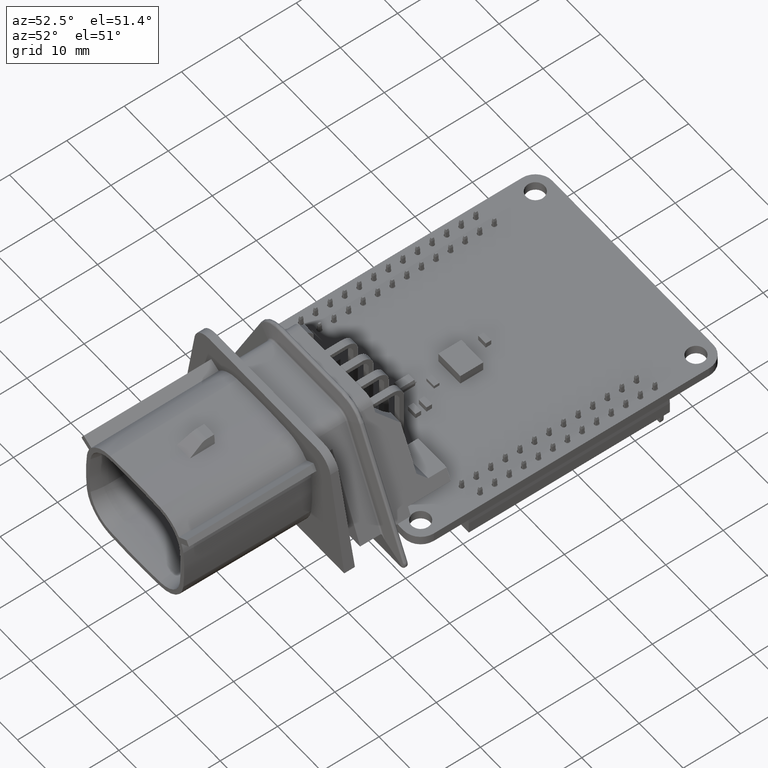
[diagram: clean part render]
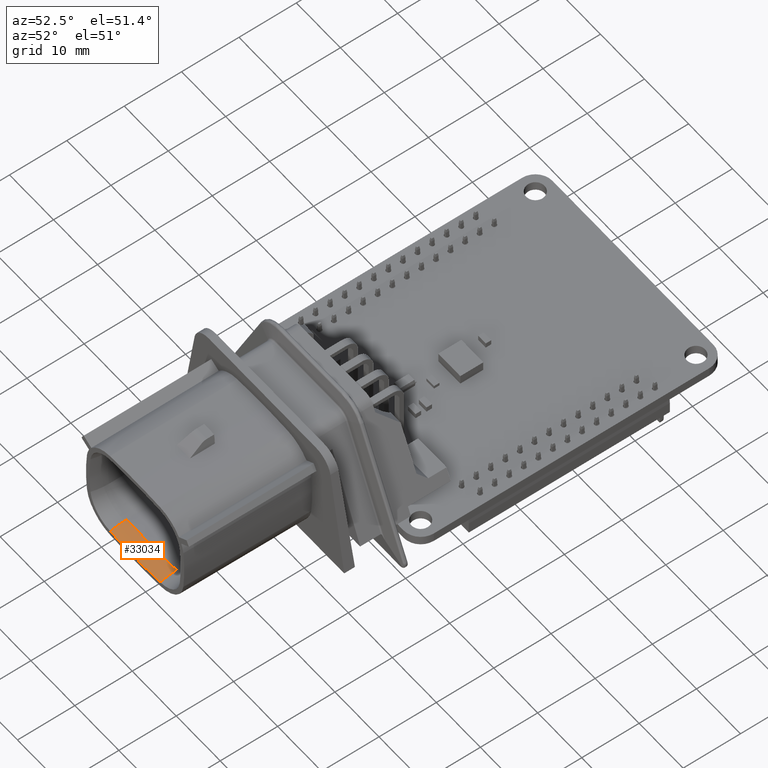
[diagram: same view with one face highlighted and labeled with its STEP entity id]
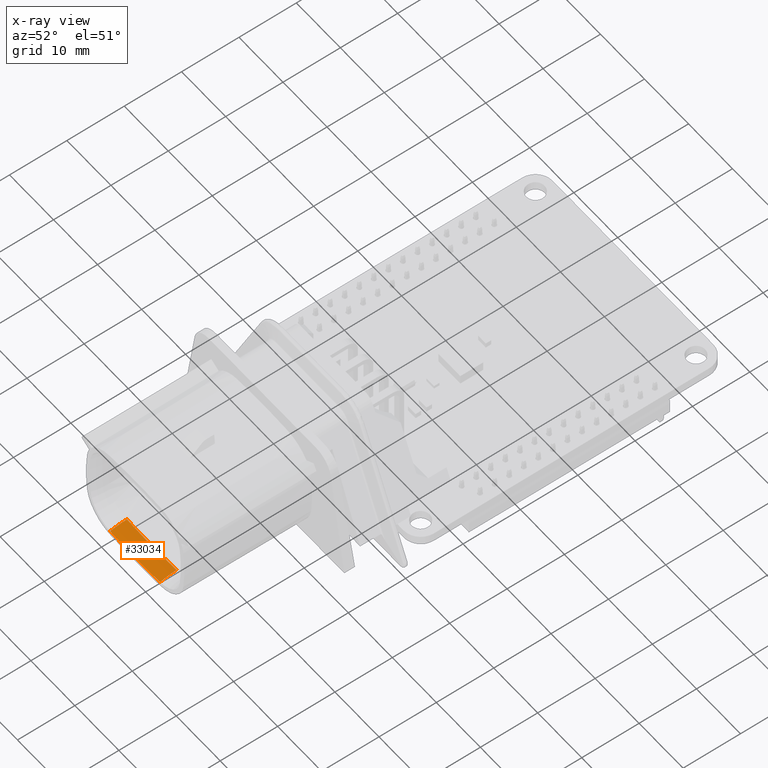
[diagram: x-ray of the same camera — body ghosted, the highlighted face saturated]
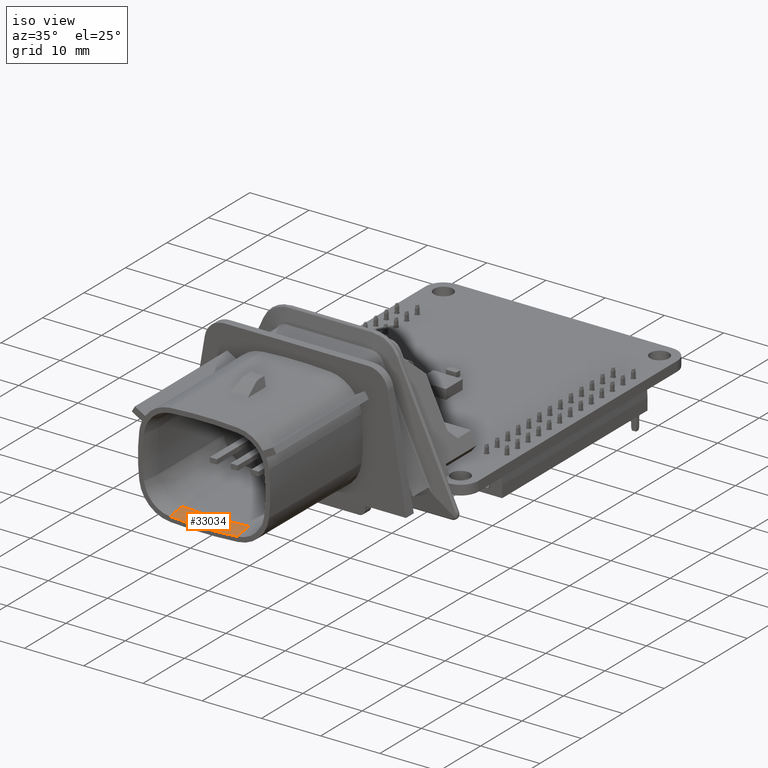
[diagram: same view with one face highlighted and labeled with its STEP entity id]
A machine part, auxiliary view. The second image highlights one B-rep face of the part: STEP entity #33034.
The next image is the same camera in x-ray: the body ghosted, the highlighted face saturated — about 0% of this face is hidden behind the body in this view.
A second angle (iso view) of the same face is appended — the face is thin or edge-on in the first view.
In plain terms, the highlighted toroidal blend (fillet) surface has major radius 86.3684 mm and minor (blend) radius 9.8464 mm.
Its self-contained STEP definition (entity closure, byte-faithful):
#8755 = PLANE('',#8756);
#8756 = AXIS2_PLACEMENT_3D('',#8757,#8758,#8759);
#8757 = CARTESIAN_POINT('',(5.806851072447,19.79645137002,33.88499901064
    ));
#8758 = DIRECTION('',(0.E+000,0.E+000,1.));
#8759 = DIRECTION('',(1.,-0.E+000,0.E+000));
#12275 = TOROIDAL_SURFACE('',#12276,14.2645842,9.8464104);
#12276 = AXIS2_PLACEMENT_3D('',#12277,#12278,#12279);
#12277 = CARTESIAN_POINT('',(12.79530848084,8.450828863081,
    30.94184092955));
#12278 = DIRECTION('',(0.E+000,0.E+000,-1.));
#12279 = DIRECTION('',(0.993093812473,-0.117322971442,0.E+000));
#13053 = VERTEX_POINT('',#13054);
#13054 = CARTESIAN_POINT('',(13.15437170544,3.595759587835,
    33.88499901064));
#13102 = EDGE_CURVE('',#13053,#13103,#13105,.T.);
#13103 = VERTEX_POINT('',#13104);
#13104 = CARTESIAN_POINT('',(1.800227767993,3.595759587835,
    33.88499901064));
#13105 = SURFACE_CURVE('',#13106,(#13111,#13122),.PCURVE_S1.);
#13106 = CIRCLE('',#13107,76.972105);
#13107 = AXIS2_PLACEMENT_3D('',#13108,#13109,#13110);
#13108 = CARTESIAN_POINT('',(7.477299736727,80.35822313374,
    33.88499901065));
#13109 = DIRECTION('',(0.E+000,-0.E+000,-1.));
#13110 = DIRECTION('',(7.375492673705E-002,-0.997276396383,0.E+000));
#13111 = PCURVE('',#8755,#13112);
#13112 = DEFINITIONAL_REPRESENTATION('',(#13113),#13121);
#13113 = ( BOUNDED_CURVE() B_SPLINE_CURVE(2,(#13114,#13115,#13116,#13117
    ,#13118,#13119,#13120),.UNSPECIFIED.,.F.,.F.) 
B_SPLINE_CURVE_WITH_KNOTS((1,2,2,2,2,1),(-2.094395102393,0.E+000,
    2.094395102393,4.188790204786,6.28318530718,8.377580409573),
.UNSPECIFIED.) CURVE() GEOMETRIC_REPRESENTATION_ITEM() 
RATIONAL_B_SPLINE_CURVE((1.,0.5,1.,0.5,1.,0.5,1.)) REPRESENTATION_ITEM(
  '') );
#13114 = CARTESIAN_POINT('',(7.347520629351,-16.20069173266));
#13115 = CARTESIAN_POINT('',(-125.6089662605,-26.03366881439));
#13116 = CARTESIAN_POINT('',(-67.6463307632,94.02651497105));
#13117 = CARTESIAN_POINT('',(-9.683695265863,214.08669875649));
#13118 = CARTESIAN_POINT('',(65.310156126693,103.85949205277));
#13119 = CARTESIAN_POINT('',(140.30400751924,-6.36771465094));
#13120 = CARTESIAN_POINT('',(7.347520629351,-16.20069173266));
#13121 = ( GEOMETRIC_REPRESENTATION_CONTEXT(2) 
PARAMETRIC_REPRESENTATION_CONTEXT() REPRESENTATION_CONTEXT('2D SPACE',''
  ) );
#13122 = PCURVE('',#13123,#13128);
#13123 = TOROIDAL_SURFACE('',#13124,86.3683606,9.8464104);
#13124 = AXIS2_PLACEMENT_3D('',#13125,#13126,#13127);
#13125 = CARTESIAN_POINT('',(7.477299736717,80.35822313373,
    30.94184092955));
#13126 = DIRECTION('',(0.E+000,0.E+000,-1.));
#13127 = DIRECTION('',(0.E+000,-1.,0.E+000));
#13128 = DEFINITIONAL_REPRESENTATION('',(#13129),#13155);
#13129 = B_SPLINE_CURVE_WITH_KNOTS('',3,(#13130,#13131,#13132,#13133,
    #13134,#13135,#13136,#13137,#13138,#13139,#13140,#13141,#13142,
    #13143,#13144,#13145,#13146,#13147,#13148,#13149,#13150,#13151,
    #13152,#13153,#13154),.UNSPECIFIED.,.F.,.F.,(4,1,1,1,1,1,1,1,1,1,1,1
    ,1,1,1,1,1,1,1,1,1,1,4),(0.E+000,6.711087227221E-003,
    1.342217445444E-002,2.013326168166E-002,2.684434890888E-002,
    3.35554361361E-002,4.026652336332E-002,4.697761059054E-002,
    5.368869781777E-002,6.039978504499E-002,6.711087227221E-002,
    7.382195949943E-002,8.053304672665E-002,8.724413395387E-002,
    9.395522118109E-002,0.100666308408,0.107377395636,0.114088482863,
    0.12079957009,0.127510657317,0.134221744544,0.140932831772,
    0.147643918999),.QUASI_UNIFORM_KNOTS.);
#13130 = CARTESIAN_POINT('',(6.20936334768,3.445139426779));
#13131 = CARTESIAN_POINT('',(6.211600376756,3.445139426779));
#13132 = CARTESIAN_POINT('',(6.216074434907,3.445139426779));
#13133 = CARTESIAN_POINT('',(6.222785522134,3.445139426779));
#13134 = CARTESIAN_POINT('',(6.229496609362,3.445139426779));
#13135 = CARTESIAN_POINT('',(6.236207696589,3.445139426779));
#13136 = CARTESIAN_POINT('',(6.242918783816,3.445139426779));
#13137 = CARTESIAN_POINT('',(6.249629871043,3.445139426779));
#13138 = CARTESIAN_POINT('',(6.256340958271,3.445139426779));
#13139 = CARTESIAN_POINT('',(6.263052045498,3.445139426779));
#13140 = CARTESIAN_POINT('',(6.269763132725,3.445139426779));
#13141 = CARTESIAN_POINT('',(6.276474219952,3.445139426779));
#13142 = CARTESIAN_POINT('',(6.283185307179,3.445139426779));
#13143 = CARTESIAN_POINT('',(6.289896394407,3.445139426779));
#13144 = CARTESIAN_POINT('',(6.296607481634,3.445139426779));
#13145 = CARTESIAN_POINT('',(6.303318568861,3.445139426779));
#13146 = CARTESIAN_POINT('',(6.310029656088,3.445139426779));
#13147 = CARTESIAN_POINT('',(6.316740743316,3.445139426779));
#13148 = CARTESIAN_POINT('',(6.323451830543,3.445139426779));
#13149 = CARTESIAN_POINT('',(6.33016291777,3.445139426779));
#13150 = CARTESIAN_POINT('',(6.336874004997,3.445139426779));
#13151 = CARTESIAN_POINT('',(6.343585092224,3.445139426779));
#13152 = CARTESIAN_POINT('',(6.350296179452,3.445139426779));
#13153 = CARTESIAN_POINT('',(6.354770237603,3.445139426779));
#13154 = CARTESIAN_POINT('',(6.357007266679,3.445139426779));
#13155 = ( GEOMETRIC_REPRESENTATION_CONTEXT(2) 
PARAMETRIC_REPRESENTATION_CONTEXT() REPRESENTATION_CONTEXT('2D SPACE',''
  ) );
#13178 = TOROIDAL_SURFACE('',#13179,14.2645842,9.8464104);
#13179 = AXIS2_PLACEMENT_3D('',#13180,#13181,#13182);
#13180 = CARTESIAN_POINT('',(2.159290992589,8.450828863081,
    30.94184092955));
#13181 = DIRECTION('',(-0.E+000,0.E+000,-1.));
#13182 = DIRECTION('',(-7.375492673691E-002,-0.997276396383,0.E+000));
#21496 = CONICAL_SURFACE('',#21497,76.4879011,4.3633231E-003);
#21497 = AXIS2_PLACEMENT_3D('',#21498,#21499,#21500);
#21498 = CARTESIAN_POINT('',(7.477299736717,80.35822313373,
    23.15990193177));
#21499 = DIRECTION('',(0.E+000,0.E+000,1.));
#21500 = DIRECTION('',(-1.,0.E+000,0.E+000));
#27799 = EDGE_CURVE('',#27800,#13103,#27802,.T.);
#27800 = VERTEX_POINT('',#27801);
#27801 = CARTESIAN_POINT('',(1.833421993151,4.044594922789,
    30.98480386354));
#27802 = SURFACE_CURVE('',#27803,(#27808,#27837),.PCURVE_S1.);
#27803 = CIRCLE('',#27804,9.8464104);
#27804 = AXIS2_PLACEMENT_3D('',#27805,#27806,#27807);
#27805 = CARTESIAN_POINT('',(1.107207627377,-5.774904299203,
    30.94184092956));
#27806 = DIRECTION('',(0.997276396383,-7.375492673787E-002,
    9.338555153697E-013));
#27807 = DIRECTION('',(7.375422464412E-002,0.99726690303,
    4.363309285682E-003));
#27808 = PCURVE('',#13178,#27809);
#27809 = DEFINITIONAL_REPRESENTATION('',(#27810),#27836);
#27810 = B_SPLINE_CURVE_WITH_KNOTS('',3,(#27811,#27812,#27813,#27814,
    #27815,#27816,#27817,#27818,#27819,#27820,#27821,#27822,#27823,
    #27824,#27825,#27826,#27827,#27828,#27829,#27830,#27831,#27832,
    #27833,#27834,#27835),.UNSPECIFIED.,.F.,.F.,(4,1,1,1,1,1,1,1,1,1,1,1
    ,1,1,1,1,1,1,1,1,1,1,4),(0.E+000,1.359924778135E-002,
    2.71984955627E-002,4.079774334405E-002,5.43969911254E-002,
    6.799623890674E-002,8.159548668809E-002,9.519473446944E-002,
    0.108793982251,0.122393230032,0.135992477813,0.149591725595,
    0.163190973376,0.176790221158,0.190389468939,0.20398871672,
    0.217587964502,0.231187212283,0.244786460064,0.258385707846,
    0.271984955627,0.285584203408,0.29918345119),.QUASI_UNIFORM_KNOTS.);
#27811 = CARTESIAN_POINT('',(0.E+000,3.145955976737));
#27812 = CARTESIAN_POINT('',(-2.720490499541E-012,3.150489059348));
#27813 = CARTESIAN_POINT('',(-5.24380538991E-012,3.159555224568));
#27814 = CARTESIAN_POINT('',(-4.189537605725E-012,3.173154472398));
#27815 = CARTESIAN_POINT('',(-4.431122135884E-012,3.186753720229));
#27816 = CARTESIAN_POINT('',(-4.320099833421E-012,3.200352968059));
#27817 = CARTESIAN_POINT('',(-4.301448086608E-012,3.213952215889));
#27818 = CARTESIAN_POINT('',(-4.255262808783E-012,3.227551463719));
#27819 = CARTESIAN_POINT('',(-4.213518423057E-012,3.24115071155));
#27820 = CARTESIAN_POINT('',(-4.169997680492E-012,3.25474995938));
#27821 = CARTESIAN_POINT('',(-4.124700581087E-012,3.26834920721));
#27822 = CARTESIAN_POINT('',(-4.074962589584E-012,3.28194845504));
#27823 = CARTESIAN_POINT('',(-4.02788913334E-012,3.29554770287));
#27824 = CARTESIAN_POINT('',(-3.975486606578E-012,3.309146950699));
#27825 = CARTESIAN_POINT('',(-3.925748615075E-012,3.322746198529));
#27826 = CARTESIAN_POINT('',(-3.871569731473E-012,3.336345446358));
#27827 = CARTESIAN_POINT('',(-3.816502669451E-012,3.349944694188));
#27828 = CARTESIAN_POINT('',(-3.76054742901E-012,3.363543942017));
#27829 = CARTESIAN_POINT('',(-3.707256723828E-012,3.377143189846));
#27830 = CARTESIAN_POINT('',(-3.635314271833E-012,3.390742437675));
#27831 = CARTESIAN_POINT('',(-3.634426093413E-012,3.404341685504));
#27832 = CARTESIAN_POINT('',(-3.363531675404E-012,3.417940933333));
#27833 = CARTESIAN_POINT('',(-4.085620730621E-012,3.431540181161));
#27834 = CARTESIAN_POINT('',(-2.10409467627E-012,3.44060634638));
#27835 = CARTESIAN_POINT('',(0.E+000,3.445139428989));
#27836 = ( GEOMETRIC_REPRESENTATION_CONTEXT(2) 
PARAMETRIC_REPRESENTATION_CONTEXT() REPRESENTATION_CONTEXT('2D SPACE',''
  ) );
#27837 = PCURVE('',#13123,#27838);
#27838 = DEFINITIONAL_REPRESENTATION('',(#27839),#27865);
#27839 = B_SPLINE_CURVE_WITH_KNOTS('',3,(#27840,#27841,#27842,#27843,
    #27844,#27845,#27846,#27847,#27848,#27849,#27850,#27851,#27852,
    #27853,#27854,#27855,#27856,#27857,#27858,#27859,#27860,#27861,
    #27862,#27863,#27864),.UNSPECIFIED.,.F.,.F.,(4,1,1,1,1,1,1,1,1,1,1,1
    ,1,1,1,1,1,1,1,1,1,1,4),(0.E+000,1.359924778135E-002,
    2.71984955627E-002,4.079774334405E-002,5.43969911254E-002,
    6.799623890674E-002,8.159548668809E-002,9.519473446944E-002,
    0.108793982251,0.122393230032,0.135992477813,0.149591725595,
    0.163190973376,0.176790221158,0.190389468939,0.20398871672,
    0.217587964502,0.231187212283,0.244786460064,0.258385707846,
    0.271984955627,0.285584203408,0.29918345119),.QUASI_UNIFORM_KNOTS.);
#27840 = CARTESIAN_POINT('',(6.357007266679,3.145955976727));
#27841 = CARTESIAN_POINT('',(6.357007266679,3.150489059327));
#27842 = CARTESIAN_POINT('',(6.357007266679,3.159555224526));
#27843 = CARTESIAN_POINT('',(6.357007266679,3.173154472324));
#27844 = CARTESIAN_POINT('',(6.357007266679,3.186753720122));
#27845 = CARTESIAN_POINT('',(6.357007266679,3.200352967921));
#27846 = CARTESIAN_POINT('',(6.357007266679,3.213952215719));
#27847 = CARTESIAN_POINT('',(6.357007266679,3.227551463517));
#27848 = CARTESIAN_POINT('',(6.357007266679,3.241150711316));
#27849 = CARTESIAN_POINT('',(6.357007266679,3.254749959114));
#27850 = CARTESIAN_POINT('',(6.357007266679,3.268349206912));
#27851 = CARTESIAN_POINT('',(6.357007266679,3.28194845471));
#27852 = CARTESIAN_POINT('',(6.357007266679,3.295547702508));
#27853 = CARTESIAN_POINT('',(6.357007266679,3.309146950307));
#27854 = CARTESIAN_POINT('',(6.357007266679,3.322746198105));
#27855 = CARTESIAN_POINT('',(6.357007266679,3.336345445903));
#27856 = CARTESIAN_POINT('',(6.357007266679,3.349944693701));
#27857 = CARTESIAN_POINT('',(6.357007266679,3.363543941499));
#27858 = CARTESIAN_POINT('',(6.357007266679,3.377143189297));
#27859 = CARTESIAN_POINT('',(6.357007266679,3.390742437094));
#27860 = CARTESIAN_POINT('',(6.357007266679,3.404341684892));
#27861 = CARTESIAN_POINT('',(6.357007266679,3.41794093269));
#27862 = CARTESIAN_POINT('',(6.357007266679,3.431540180488));
#27863 = CARTESIAN_POINT('',(6.357007266679,3.440606345686));
#27864 = CARTESIAN_POINT('',(6.357007266679,3.445139428285));
#27865 = ( GEOMETRIC_REPRESENTATION_CONTEXT(2) 
PARAMETRIC_REPRESENTATION_CONTEXT() REPRESENTATION_CONTEXT('2D SPACE',''
  ) );
#29544 = VERTEX_POINT('',#29545);
#29545 = CARTESIAN_POINT('',(13.12117748028,4.044594922789,
    30.98480386354));
#29754 = EDGE_CURVE('',#29544,#27800,#29755,.T.);
#29755 = SURFACE_CURVE('',#29756,(#29761,#29790),.PCURVE_S1.);
#29756 = CIRCLE('',#29757,76.5220439);
#29757 = AXIS2_PLACEMENT_3D('',#29758,#29759,#29760);
#29758 = CARTESIAN_POINT('',(7.477299736727,80.35822313374,
    30.98480386355));
#29759 = DIRECTION('',(-0.E+000,-0.E+000,-1.));
#29760 = DIRECTION('',(0.E+000,-1.,0.E+000));
#29761 = PCURVE('',#21496,#29762);
#29762 = DEFINITIONAL_REPRESENTATION('',(#29763),#29789);
#29763 = B_SPLINE_CURVE_WITH_KNOTS('',3,(#29764,#29765,#29766,#29767,
    #29768,#29769,#29770,#29771,#29772,#29773,#29774,#29775,#29776,
    #29777,#29778,#29779,#29780,#29781,#29782,#29783,#29784,#29785,
    #29786,#29787,#29788),.UNSPECIFIED.,.F.,.F.,(4,1,1,1,1,1,1,1,1,1,1,1
    ,1,1,1,1,1,1,1,1,1,1,4),(6.20936334768,6.216074434908,6.222785522135
    ,6.229496609362,6.236207696589,6.242918783816,6.249629871044,
    6.256340958271,6.263052045498,6.269763132725,6.276474219953,
    6.28318530718,6.289896394407,6.296607481634,6.303318568861,
    6.310029656089,6.316740743316,6.323451830543,6.33016291777,
    6.336874004997,6.343585092225,6.350296179452,6.357007266679),
  .QUASI_UNIFORM_KNOTS.);
#29764 = CARTESIAN_POINT('',(1.644618286294,7.824901931815));
#29765 = CARTESIAN_POINT('',(1.642381257218,7.824901931815));
#29766 = CARTESIAN_POINT('',(1.637907199067,7.824901931815));
#29767 = CARTESIAN_POINT('',(1.63119611184,7.824901931815));
#29768 = CARTESIAN_POINT('',(1.624485024613,7.824901931815));
#29769 = CARTESIAN_POINT('',(1.617773937385,7.824901931815));
#29770 = CARTESIAN_POINT('',(1.611062850158,7.824901931815));
#29771 = CARTESIAN_POINT('',(1.604351762931,7.824901931815));
#29772 = CARTESIAN_POINT('',(1.597640675704,7.824901931815));
#29773 = CARTESIAN_POINT('',(1.590929588477,7.824901931815));
#29774 = CARTESIAN_POINT('',(1.584218501249,7.824901931815));
#29775 = CARTESIAN_POINT('',(1.577507414022,7.824901931815));
#29776 = CARTESIAN_POINT('',(1.570796326795,7.824901931815));
#29777 = CARTESIAN_POINT('',(1.564085239568,7.824901931815));
#29778 = CARTESIAN_POINT('',(1.55737415234,7.824901931815));
#29779 = CARTESIAN_POINT('',(1.550663065113,7.824901931815));
#29780 = CARTESIAN_POINT('',(1.543951977886,7.824901931815));
#29781 = CARTESIAN_POINT('',(1.537240890659,7.824901931815));
#29782 = CARTESIAN_POINT('',(1.530529803432,7.824901931815));
#29783 = CARTESIAN_POINT('',(1.523818716204,7.824901931815));
#29784 = CARTESIAN_POINT('',(1.517107628977,7.824901931815));
#29785 = CARTESIAN_POINT('',(1.51039654175,7.824901931815));
#29786 = CARTESIAN_POINT('',(1.503685454523,7.824901931815));
#29787 = CARTESIAN_POINT('',(1.499211396371,7.824901931815));
#29788 = CARTESIAN_POINT('',(1.496974367296,7.824901931815));
#29789 = ( GEOMETRIC_REPRESENTATION_CONTEXT(2) 
PARAMETRIC_REPRESENTATION_CONTEXT() REPRESENTATION_CONTEXT('2D SPACE',''
  ) );
#29790 = PCURVE('',#13123,#29791);
#29791 = DEFINITIONAL_REPRESENTATION('',(#29792),#29818);
#29792 = B_SPLINE_CURVE_WITH_KNOTS('',3,(#29793,#29794,#29795,#29796,
    #29797,#29798,#29799,#29800,#29801,#29802,#29803,#29804,#29805,
    #29806,#29807,#29808,#29809,#29810,#29811,#29812,#29813,#29814,
    #29815,#29816,#29817),.UNSPECIFIED.,.F.,.F.,(4,1,1,1,1,1,1,1,1,1,1,1
    ,1,1,1,1,1,1,1,1,1,1,4),(6.20936334768,6.216074434908,6.222785522135
    ,6.229496609362,6.236207696589,6.242918783816,6.249629871044,
    6.256340958271,6.263052045498,6.269763132725,6.276474219953,
    6.28318530718,6.289896394407,6.296607481634,6.303318568861,
    6.310029656089,6.316740743316,6.323451830543,6.33016291777,
    6.336874004997,6.343585092225,6.350296179452,6.357007266679),
  .QUASI_UNIFORM_KNOTS.);
#29793 = CARTESIAN_POINT('',(6.20936334768,3.145955976714));
#29794 = CARTESIAN_POINT('',(6.211600376756,3.145955976714));
#29795 = CARTESIAN_POINT('',(6.216074434908,3.145955976714));
#29796 = CARTESIAN_POINT('',(6.222785522135,3.145955976714));
#29797 = CARTESIAN_POINT('',(6.229496609362,3.145955976714));
#29798 = CARTESIAN_POINT('',(6.236207696589,3.145955976714));
#29799 = CARTESIAN_POINT('',(6.242918783816,3.145955976714));
#29800 = CARTESIAN_POINT('',(6.249629871044,3.145955976714));
#29801 = CARTESIAN_POINT('',(6.256340958271,3.145955976714));
#29802 = CARTESIAN_POINT('',(6.263052045498,3.145955976714));
#29803 = CARTESIAN_POINT('',(6.269763132725,3.145955976714));
#29804 = CARTESIAN_POINT('',(6.276474219952,3.145955976714));
#29805 = CARTESIAN_POINT('',(6.28318530718,3.145955976714));
#29806 = CARTESIAN_POINT('',(6.289896394407,3.145955976714));
#29807 = CARTESIAN_POINT('',(6.296607481634,3.145955976714));
#29808 = CARTESIAN_POINT('',(6.303318568861,3.145955976714));
#29809 = CARTESIAN_POINT('',(6.310029656088,3.145955976714));
#29810 = CARTESIAN_POINT('',(6.316740743316,3.145955976714));
#29811 = CARTESIAN_POINT('',(6.323451830543,3.145955976714));
#29812 = CARTESIAN_POINT('',(6.33016291777,3.145955976714));
#29813 = CARTESIAN_POINT('',(6.336874004997,3.145955976714));
#29814 = CARTESIAN_POINT('',(6.343585092224,3.145955976714));
#29815 = CARTESIAN_POINT('',(6.350296179452,3.145955976714));
#29816 = CARTESIAN_POINT('',(6.354770237603,3.145955976714));
#29817 = CARTESIAN_POINT('',(6.357007266679,3.145955976714));
#29818 = ( GEOMETRIC_REPRESENTATION_CONTEXT(2) 
PARAMETRIC_REPRESENTATION_CONTEXT() REPRESENTATION_CONTEXT('2D SPACE',''
  ) );
#33034 = ADVANCED_FACE('',(#33035),#13123,.T.);
#33035 = FACE_BOUND('',#33036,.T.);
#33036 = EDGE_LOOP('',(#33037,#33038,#33039,#33040));
#33037 = ORIENTED_EDGE('',*,*,#29754,.T.);
#33038 = ORIENTED_EDGE('',*,*,#27799,.T.);
#33039 = ORIENTED_EDGE('',*,*,#13102,.F.);
#33040 = ORIENTED_EDGE('',*,*,#33041,.F.);
#33041 = EDGE_CURVE('',#29544,#13053,#33042,.T.);
#33042 = SURFACE_CURVE('',#33043,(#33048,#33077),.PCURVE_S1.);
#33043 = CIRCLE('',#33044,9.8464104);
#33044 = AXIS2_PLACEMENT_3D('',#33045,#33046,#33047);
#33045 = CARTESIAN_POINT('',(13.84739184608,-5.774904299203,
    30.94184092956));
#33046 = DIRECTION('',(0.997276396383,7.375492673785E-002,
    -9.338552053557E-013));
#33047 = DIRECTION('',(-7.37542246441E-002,0.99726690303,
    4.363309285764E-003));
#33048 = PCURVE('',#13123,#33049);
#33049 = DEFINITIONAL_REPRESENTATION('',(#33050),#33076);
#33050 = B_SPLINE_CURVE_WITH_KNOTS('',3,(#33051,#33052,#33053,#33054,
    #33055,#33056,#33057,#33058,#33059,#33060,#33061,#33062,#33063,
    #33064,#33065,#33066,#33067,#33068,#33069,#33070,#33071,#33072,
    #33073,#33074,#33075),.UNSPECIFIED.,.F.,.F.,(4,1,1,1,1,1,1,1,1,1,1,1
    ,1,1,1,1,1,1,1,1,1,1,4),(0.E+000,1.359924778134E-002,
    2.719849556269E-002,4.079774334403E-002,5.439699112537E-002,
    6.799623890671E-002,8.159548668806E-002,9.51947344694E-002,
    0.108793982251,0.122393230032,0.135992477813,0.149591725595,
    0.163190973376,0.176790221157,0.190389468939,0.20398871672,
    0.217587964501,0.231187212283,0.244786460064,0.258385707846,
    0.271984955627,0.285584203408,0.29918345119),.QUASI_UNIFORM_KNOTS.);
#33051 = CARTESIAN_POINT('',(6.20936334768,3.145955976727));
#33052 = CARTESIAN_POINT('',(6.20936334768,3.150489059327));
#33053 = CARTESIAN_POINT('',(6.20936334768,3.159555224526));
#33054 = CARTESIAN_POINT('',(6.20936334768,3.173154472324));
#33055 = CARTESIAN_POINT('',(6.20936334768,3.186753720122));
#33056 = CARTESIAN_POINT('',(6.20936334768,3.200352967921));
#33057 = CARTESIAN_POINT('',(6.20936334768,3.213952215719));
#33058 = CARTESIAN_POINT('',(6.20936334768,3.227551463517));
#33059 = CARTESIAN_POINT('',(6.20936334768,3.241150711316));
#33060 = CARTESIAN_POINT('',(6.20936334768,3.254749959114));
#33061 = CARTESIAN_POINT('',(6.20936334768,3.268349206912));
#33062 = CARTESIAN_POINT('',(6.20936334768,3.28194845471));
#33063 = CARTESIAN_POINT('',(6.20936334768,3.295547702508));
#33064 = CARTESIAN_POINT('',(6.20936334768,3.309146950307));
#33065 = CARTESIAN_POINT('',(6.20936334768,3.322746198105));
#33066 = CARTESIAN_POINT('',(6.20936334768,3.336345445903));
#33067 = CARTESIAN_POINT('',(6.20936334768,3.349944693701));
#33068 = CARTESIAN_POINT('',(6.20936334768,3.363543941499));
#33069 = CARTESIAN_POINT('',(6.20936334768,3.377143189297));
#33070 = CARTESIAN_POINT('',(6.20936334768,3.390742437094));
#33071 = CARTESIAN_POINT('',(6.20936334768,3.404341684892));
#33072 = CARTESIAN_POINT('',(6.20936334768,3.41794093269));
#33073 = CARTESIAN_POINT('',(6.20936334768,3.431540180488));
#33074 = CARTESIAN_POINT('',(6.20936334768,3.440606345686));
#33075 = CARTESIAN_POINT('',(6.20936334768,3.445139428285));
#33076 = ( GEOMETRIC_REPRESENTATION_CONTEXT(2) 
PARAMETRIC_REPRESENTATION_CONTEXT() REPRESENTATION_CONTEXT('2D SPACE',''
  ) );
#33077 = PCURVE('',#12275,#33078);
#33078 = DEFINITIONAL_REPRESENTATION('',(#33079),#33105);
#33079 = B_SPLINE_CURVE_WITH_KNOTS('',3,(#33080,#33081,#33082,#33083,
    #33084,#33085,#33086,#33087,#33088,#33089,#33090,#33091,#33092,
    #33093,#33094,#33095,#33096,#33097,#33098,#33099,#33100,#33101,
    #33102,#33103,#33104),.UNSPECIFIED.,.F.,.F.,(4,1,1,1,1,1,1,1,1,1,1,1
    ,1,1,1,1,1,1,1,1,1,1,4),(0.E+000,1.359924778134E-002,
    2.719849556269E-002,4.079774334403E-002,5.439699112537E-002,
    6.799623890671E-002,8.159548668806E-002,9.51947344694E-002,
    0.108793982251,0.122393230032,0.135992477813,0.149591725595,
    0.163190973376,0.176790221157,0.190389468939,0.20398871672,
    0.217587964501,0.231187212283,0.244786460064,0.258385707846,
    0.271984955627,0.285584203408,0.29918345119),.QUASI_UNIFORM_KNOTS.);
#33080 = CARTESIAN_POINT('',(1.37938056272,3.145955976738));
#33081 = CARTESIAN_POINT('',(1.37938056272,3.150489059348));
#33082 = CARTESIAN_POINT('',(1.37938056272,3.159555224568));
#33083 = CARTESIAN_POINT('',(1.37938056272,3.173154472398));
#33084 = CARTESIAN_POINT('',(1.37938056272,3.186753720229));
#33085 = CARTESIAN_POINT('',(1.37938056272,3.200352968059));
#33086 = CARTESIAN_POINT('',(1.37938056272,3.213952215889));
#33087 = CARTESIAN_POINT('',(1.37938056272,3.227551463719));
#33088 = CARTESIAN_POINT('',(1.37938056272,3.24115071155));
#33089 = CARTESIAN_POINT('',(1.37938056272,3.25474995938));
#33090 = CARTESIAN_POINT('',(1.37938056272,3.26834920721));
#33091 = CARTESIAN_POINT('',(1.37938056272,3.28194845504));
#33092 = CARTESIAN_POINT('',(1.37938056272,3.29554770287));
#33093 = CARTESIAN_POINT('',(1.37938056272,3.309146950699));
#33094 = CARTESIAN_POINT('',(1.37938056272,3.322746198529));
#33095 = CARTESIAN_POINT('',(1.37938056272,3.336345446359));
#33096 = CARTESIAN_POINT('',(1.37938056272,3.349944694188));
#33097 = CARTESIAN_POINT('',(1.37938056272,3.363543942017));
#33098 = CARTESIAN_POINT('',(1.37938056272,3.377143189846));
#33099 = CARTESIAN_POINT('',(1.37938056272,3.390742437675));
#33100 = CARTESIAN_POINT('',(1.37938056272,3.404341685504));
#33101 = CARTESIAN_POINT('',(1.37938056272,3.417940933333));
#33102 = CARTESIAN_POINT('',(1.37938056272,3.431540181161));
#33103 = CARTESIAN_POINT('',(1.37938056272,3.44060634638));
#33104 = CARTESIAN_POINT('',(1.37938056272,3.445139428989));
#33105 = ( GEOMETRIC_REPRESENTATION_CONTEXT(2) 
PARAMETRIC_REPRESENTATION_CONTEXT() REPRESENTATION_CONTEXT('2D SPACE',''
  ) );